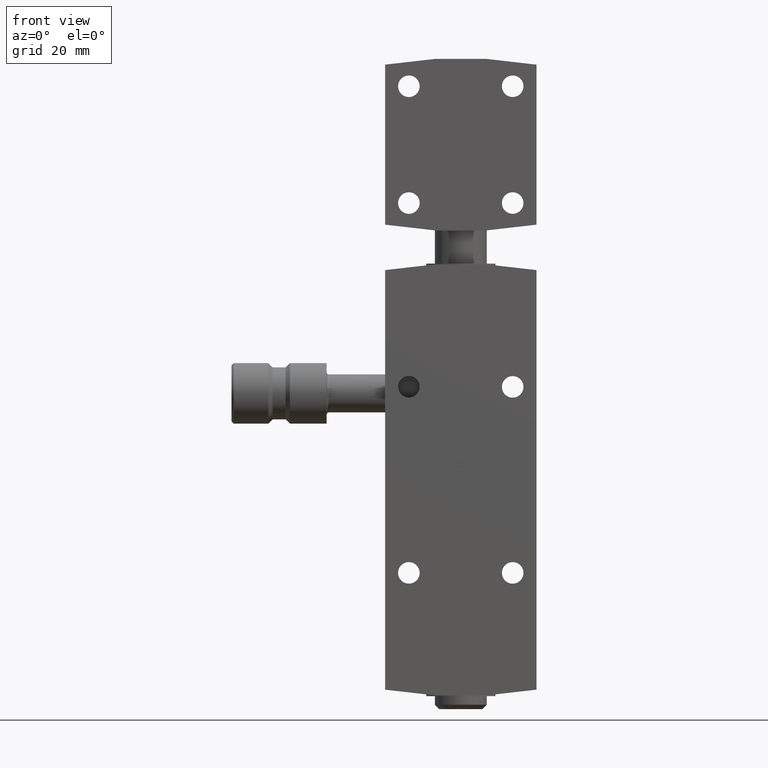
[diagram: clean part render]
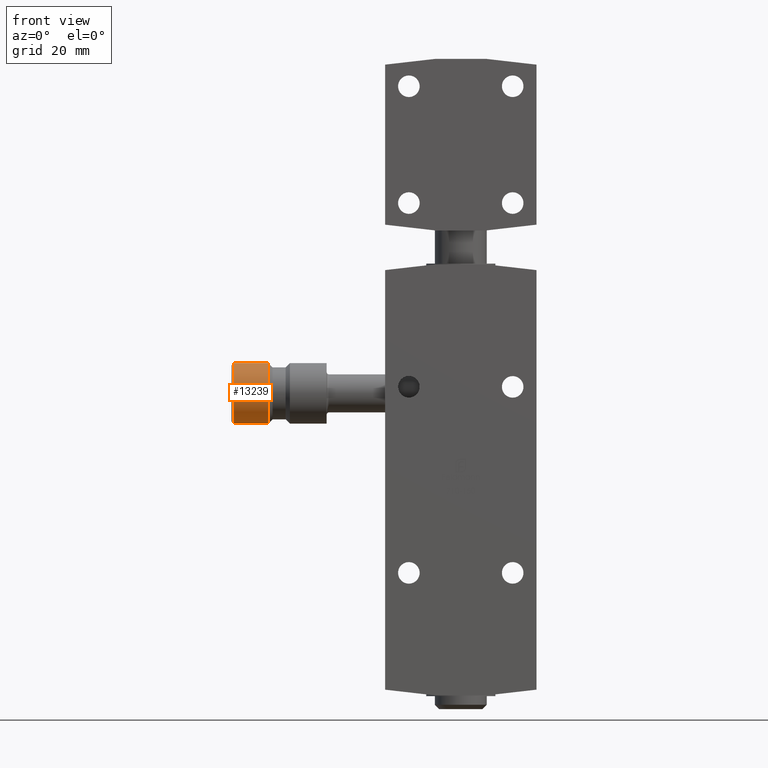
[diagram: same view with one face highlighted and labeled with its STEP entity id]
A machine part, front view. The second image highlights one B-rep face of the part: STEP entity #13239.
In plain terms, the highlighted cylindrical surface (bore or boss wall) has radius 7 mm, axis along (1, 0, 0).
Its self-contained STEP definition (entity closure, byte-faithful):
#1178 = CARTESIAN_POINT ( 'NONE',  ( -44.49999999999999289, 0.000000000000000000, 2.000000000000003553 ) ) ;
#2436 = CIRCLE ( 'NONE', #8680, 6.999999999999999112 ) ;
#3418 = ORIENTED_EDGE ( 'NONE', *, *, #5690, .T. ) ;
#3928 = DIRECTION ( 'NONE',  ( 1.000000000000000000, -0.000000000000000000, -0.000000000000000000 ) ) ;
#5019 = DIRECTION ( 'NONE',  ( 0.000000000000000000, 0.000000000000000000, -1.000000000000000000 ) ) ;
#5690 = EDGE_CURVE ( 'NONE', #8992, #8992, #6571, .T. ) ;
#6571 = CIRCLE ( 'NONE', #11156, 7.000000000000000000 ) ;
#7482 = AXIS2_PLACEMENT_3D ( 'NONE', #11596, #9523, #5019 ) ;
#8680 = AXIS2_PLACEMENT_3D ( 'NONE', #1178, #11342, #10151 ) ;
#8992 = VERTEX_POINT ( 'NONE', #9403 ) ;
#9403 = CARTESIAN_POINT ( 'NONE',  ( -52.49999999999994316, 0.000000000000000000, 9.000000000000005329 ) ) ;
#9523 = DIRECTION ( 'NONE',  ( 1.000000000000000000, -0.000000000000000000, -1.182766006347823602E-16 ) ) ;
#10076 = FACE_OUTER_BOUND ( 'NONE', #10759, .T. ) ;
#10151 = DIRECTION ( 'NONE',  ( 0.000000000000000000, 0.000000000000000000, -1.000000000000000000 ) ) ;
#10359 = EDGE_CURVE ( 'NONE', #13574, #13574, #2436, .T. ) ;
#10759 = EDGE_LOOP ( 'NONE', ( #11463 ) ) ;
#10811 = CARTESIAN_POINT ( 'NONE',  ( -52.49999999999994316, 0.000000000000000000, 2.000000000000004441 ) ) ;
#11156 = AXIS2_PLACEMENT_3D ( 'NONE', #10811, #3928, #11971 ) ;
#11342 = DIRECTION ( 'NONE',  ( 1.000000000000000000, -0.000000000000000000, -1.182766006347823602E-16 ) ) ;
#11463 = ORIENTED_EDGE ( 'NONE', *, *, #10359, .F. ) ;
#11596 = CARTESIAN_POINT ( 'NONE',  ( -31.00000000000000000, 0.000000000000000000, 2.000000000000001776 ) ) ;
#11685 = CARTESIAN_POINT ( 'NONE',  ( -44.49999999999999289, 0.000000000000000000, -4.999999999999995559 ) ) ;
#11971 = DIRECTION ( 'NONE',  ( 0.000000000000000000, 0.000000000000000000, 1.000000000000000000 ) ) ;
#13091 = FACE_OUTER_BOUND ( 'NONE', #14300, .T. ) ;
#13239 = ADVANCED_FACE ( 'NONE', ( #13091, #10076 ), #14525, .T. ) ;
#13574 = VERTEX_POINT ( 'NONE', #11685 ) ;
#14300 = EDGE_LOOP ( 'NONE', ( #3418 ) ) ;
#14525 = CYLINDRICAL_SURFACE ( 'NONE', #7482, 6.999999999999999112 ) ;